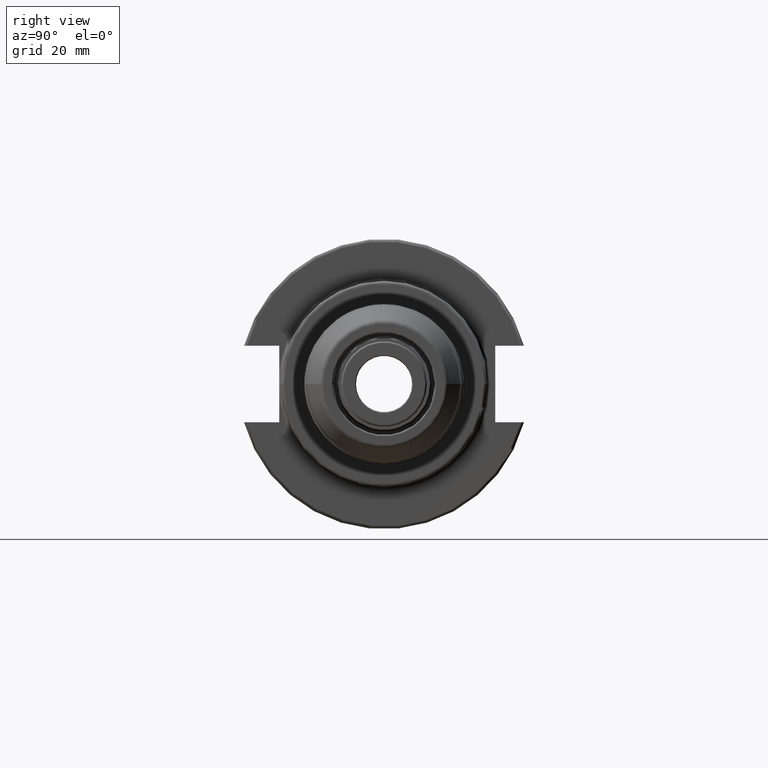
[diagram: clean part render]
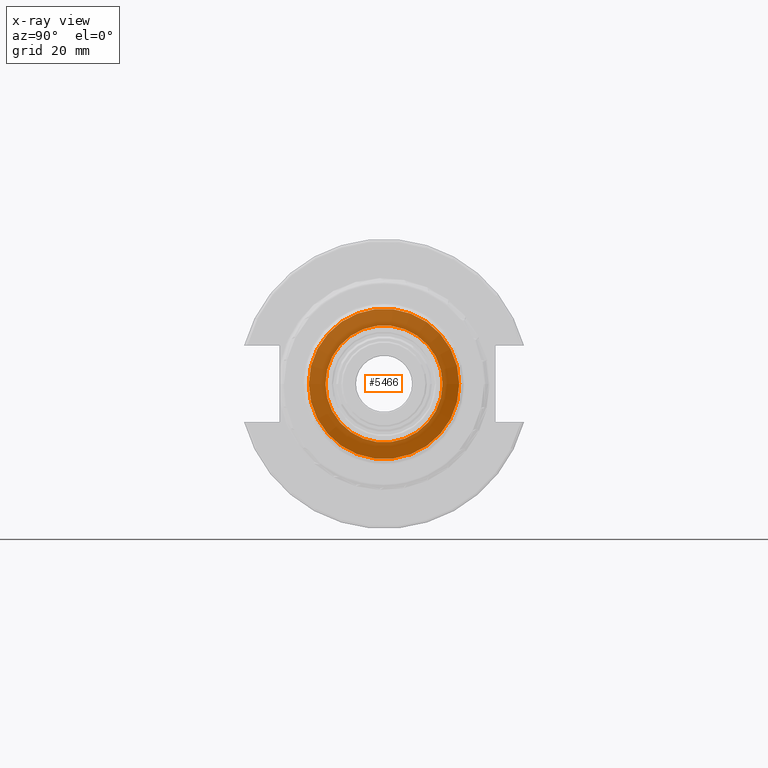
[diagram: x-ray — body ghosted, one internal face saturated and labeled with its STEP entity id]
A machine part, right view, then the same camera in x-ray: the body is ghosted and one INTERNAL B-rep face — a face not visible from any outside direction — is saturated and labeled: STEP entity #5466.
In plain terms, the highlighted planar face has unit normal (1, 0, 0).
Its self-contained STEP definition (entity closure, byte-faithful):
#3243=CARTESIAN_POINT('',(-4.55E1,0.E0,0.E0));
#3244=DIRECTION('',(1.E0,0.E0,0.E0));
#3245=DIRECTION('',(0.E0,-1.E0,0.E0));
#3246=AXIS2_PLACEMENT_3D('',#3243,#3244,#3245);
#3248=CARTESIAN_POINT('',(-4.55E1,0.E0,0.E0));
#3249=DIRECTION('',(1.E0,0.E0,0.E0));
#3250=DIRECTION('',(0.E0,1.E0,0.E0));
#3251=AXIS2_PLACEMENT_3D('',#3248,#3249,#3250);
#3253=CARTESIAN_POINT('',(-4.55E1,0.E0,0.E0));
#3254=DIRECTION('',(-1.E0,0.E0,0.E0));
#3255=DIRECTION('',(0.E0,-1.E0,0.E0));
#3256=AXIS2_PLACEMENT_3D('',#3253,#3254,#3255);
#3258=CARTESIAN_POINT('',(-4.55E1,0.E0,0.E0));
#3259=DIRECTION('',(-1.E0,0.E0,0.E0));
#3260=DIRECTION('',(0.E0,1.E0,0.E0));
#3261=AXIS2_PLACEMENT_3D('',#3258,#3259,#3260);
#4985=CARTESIAN_POINT('',(-4.55E1,-1.985E1,0.E0));
#4986=CARTESIAN_POINT('',(-4.55E1,1.985E1,0.E0));
#4987=VERTEX_POINT('',#4985);
#4988=VERTEX_POINT('',#4986);
#5001=CARTESIAN_POINT('',(-4.55E1,-2.55E1,0.E0));
#5002=CARTESIAN_POINT('',(-4.55E1,2.55E1,0.E0));
#5003=VERTEX_POINT('',#5001);
#5004=VERTEX_POINT('',#5002);
#5450=CARTESIAN_POINT('',(-4.55E1,0.E0,0.E0));
#5451=DIRECTION('',(1.E0,0.E0,0.E0));
#5452=DIRECTION('',(0.E0,-1.E0,0.E0));
#5453=AXIS2_PLACEMENT_3D('',#5450,#5451,#5452);
#5454=PLANE('',#5453);
#5456=ORIENTED_EDGE('',*,*,#5455,.F.);
#5458=ORIENTED_EDGE('',*,*,#5457,.F.);
#5459=EDGE_LOOP('',(#5456,#5458));
#5460=FACE_OUTER_BOUND('',#5459,.F.);
#5462=ORIENTED_EDGE('',*,*,#5461,.F.);
#5463=ORIENTED_EDGE('',*,*,#5440,.F.);
#5464=EDGE_LOOP('',(#5462,#5463));
#5465=FACE_BOUND('',#5464,.F.);
#5466=ADVANCED_FACE('',(#5460,#5465),#5454,.F.);
#3247=CIRCLE('',#3246,1.985E1);
#3252=CIRCLE('',#3251,1.985E1);
#3257=CIRCLE('',#3256,2.55E1);
#3262=CIRCLE('',#3261,2.55E1);
#5440=EDGE_CURVE('',#4988,#4987,#3252,.T.);
#5455=EDGE_CURVE('',#5003,#5004,#3257,.T.);
#5457=EDGE_CURVE('',#5004,#5003,#3262,.T.);
#5461=EDGE_CURVE('',#4987,#4988,#3247,.T.);